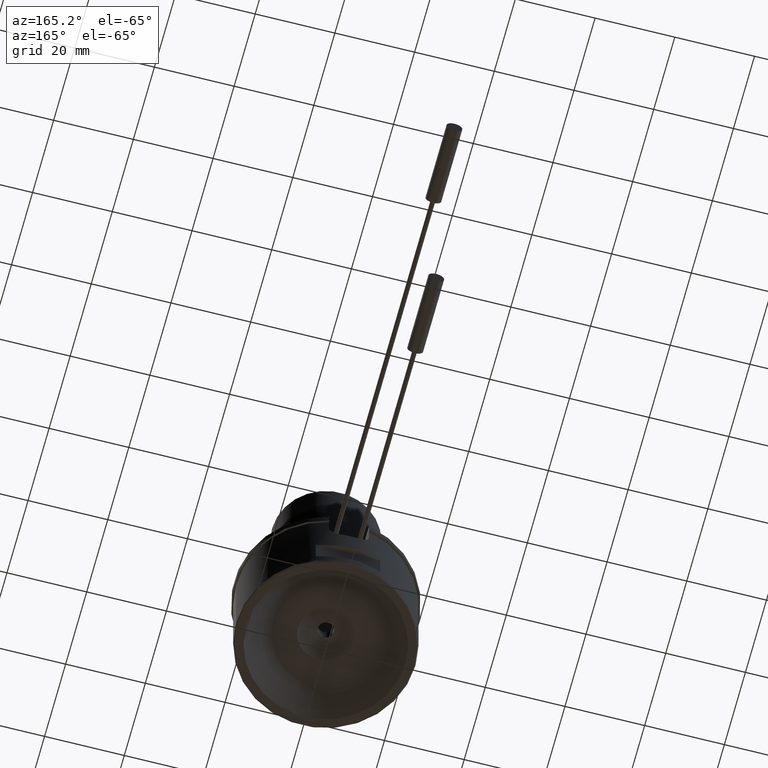
[diagram: clean part render]
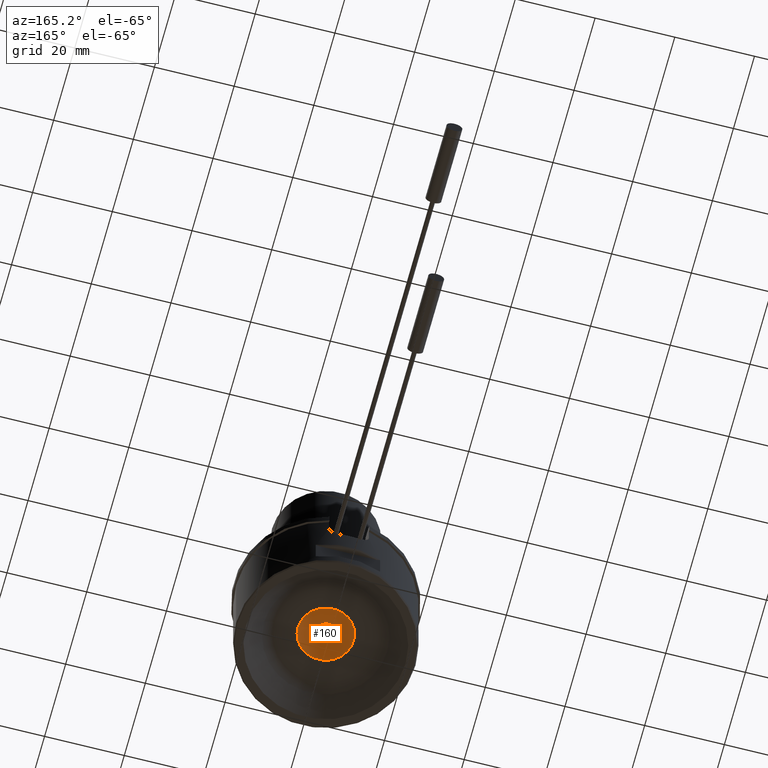
[diagram: same view with one face highlighted and labeled with its STEP entity id]
A machine part, auxiliary view. The second image highlights one B-rep face of the part: STEP entity #160.
In plain terms, the highlighted spherical surface has radius 11 mm.
Its self-contained STEP definition (entity closure, byte-faithful):
#52=SPHERICAL_SURFACE('',#1026,11.);
#160=ADVANCED_FACE('',(#340,#341),#52,.F.);
#340=FACE_BOUND('',#408,.T.);
#341=FACE_BOUND('',#409,.T.);
#408=EDGE_LOOP('',(#559));
#409=EDGE_LOOP('',(#560));
#559=ORIENTED_EDGE('',*,*,#870,.T.);
#560=ORIENTED_EDGE('',*,*,#869,.F.);
#771=VERTEX_POINT('',#1612);
#772=VERTEX_POINT('',#1615);
#869=EDGE_CURVE('',#771,#771,#949,.T.);
#870=EDGE_CURVE('',#772,#772,#950,.T.);
#949=CIRCLE('',#1023,2.00000000000749);
#950=CIRCLE('',#1025,6.98212002188452);
#1023=AXIS2_PLACEMENT_3D('',#1611,#1224,#1225);
#1025=AXIS2_PLACEMENT_3D('',#1614,#1228,#1229);
#1026=AXIS2_PLACEMENT_3D('',#1616,#1230,#1231);
#1224=DIRECTION('',(0.,0.,-1.));
#1225=DIRECTION('',(1.,0.,0.));
#1228=DIRECTION('',(0.,0.,-1.));
#1229=DIRECTION('',(1.,0.,0.));
#1230=DIRECTION('',(0.,-6.12323399573677E-17,1.));
#1231=DIRECTION('',(0.,-1.,0.));
#1611=CARTESIAN_POINT('',(0.,0.,8.31665382639197));
#1612=CARTESIAN_POINT('',(2.00000000000749,0.,8.31665382639197));
#1614=CARTESIAN_POINT('',(0.,0.,5.99999999999996));
#1615=CARTESIAN_POINT('',(6.98212002188452,0.,5.99999999999996));
#1616=CARTESIAN_POINT('',(0.,0.,-2.5));